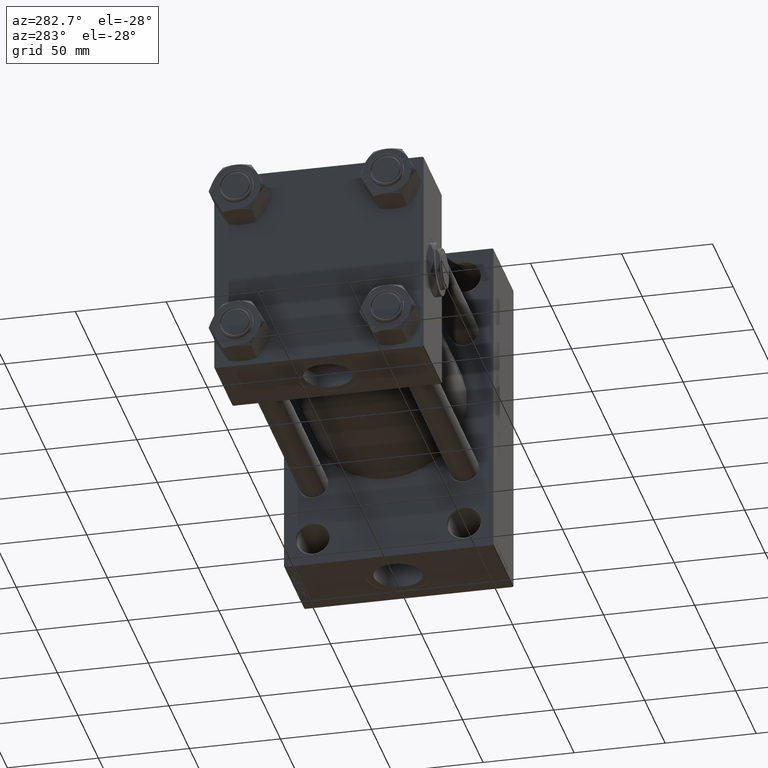
[diagram: clean part render]
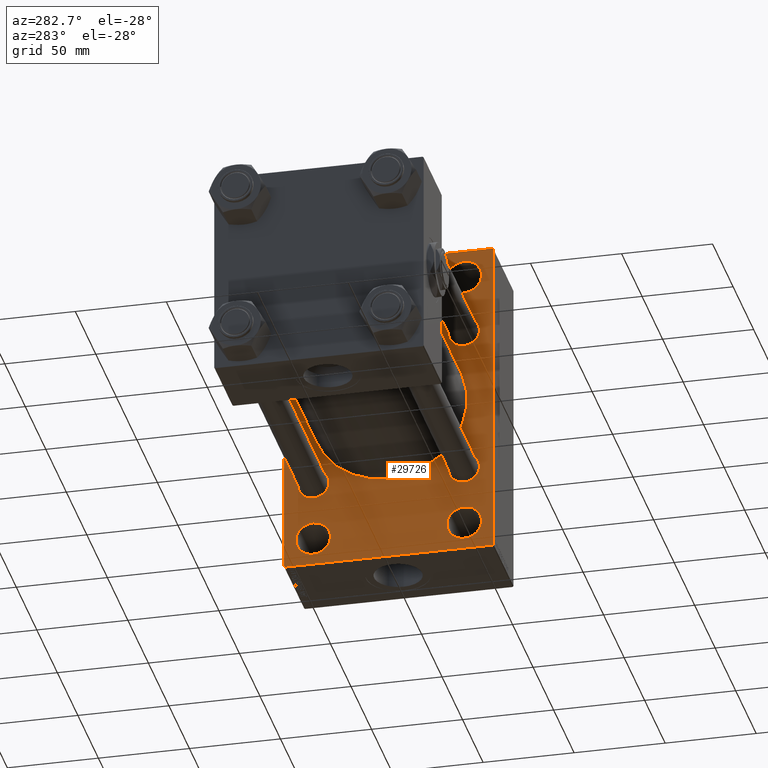
[diagram: same view with one face highlighted and labeled with its STEP entity id]
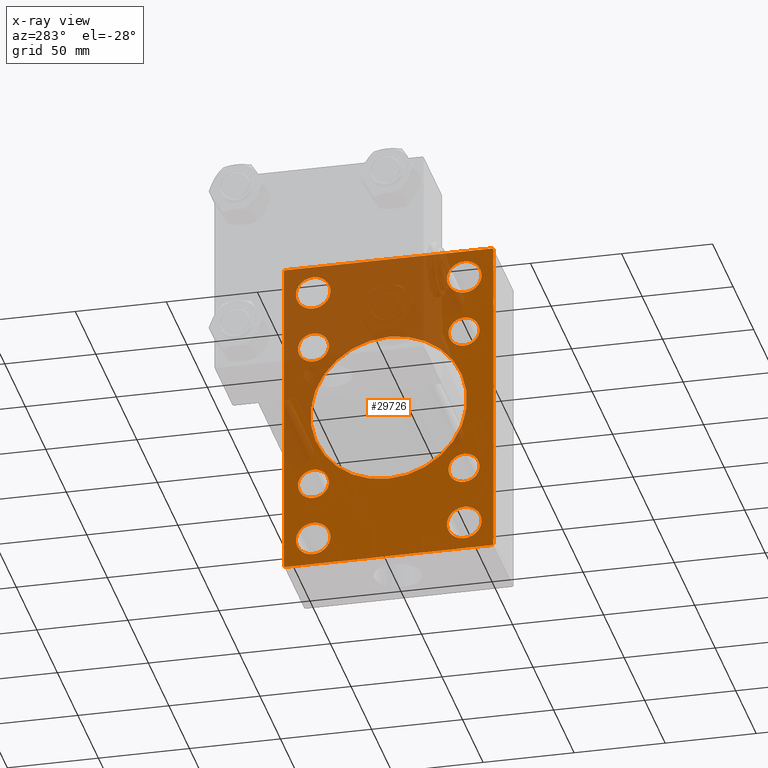
[diagram: x-ray of the same camera — body ghosted, the highlighted face saturated]
A machine part, auxiliary view. The second image highlights one B-rep face of the part: STEP entity #29726.
The next image is the same camera in x-ray: the body ghosted, the highlighted face saturated — about 42% of this face is hidden behind the body in this view.
In plain terms, the highlighted planar face has unit normal (-1, 0, 0).
Its self-contained STEP definition (entity closure, byte-faithful):
#197 = ORIENTED_EDGE ( 'NONE', *, *, #21990, .T. ) ;
#477 = CARTESIAN_POINT ( 'NONE',  ( 169.9999999999999716, 57.49999999999997868, -90.00000000000000000 ) ) ;
#631 = CARTESIAN_POINT ( 'NONE',  ( 169.9999999999999716, -41.34999999999998721, 49.85000000000002274 ) ) ;
#765 = CARTESIAN_POINT ( 'NONE',  ( 169.9999999999999716, 41.50000000000000711, 84.00000000000001421 ) ) ;
#863 = EDGE_LOOP ( 'NONE', ( #42888, #26894 ) ) ;
#1113 = EDGE_LOOP ( 'NONE', ( #14651, #21643 ) ) ;
#1150 = CARTESIAN_POINT ( 'NONE',  ( 169.9999999999999716, 57.49999999999997158, 89.99999999999998579 ) ) ;
#1376 = CARTESIAN_POINT ( 'NONE',  ( 169.9999999999999716, 41.50000000000000711, -74.50000000000000000 ) ) ;
#1391 = VERTEX_POINT ( 'NONE', #7653 ) ;
#1533 = DIRECTION ( 'NONE',  ( 0.000000000000000000, 0.000000000000000000, 1.000000000000000000 ) ) ;
#1783 = DIRECTION ( 'NONE',  ( 1.000000000000000000, -0.000000000000000000, 0.000000000000000000 ) ) ;
#1931 = EDGE_CURVE ( 'NONE', #37628, #38474, #46629, .T. ) ;
#2137 = CARTESIAN_POINT ( 'NONE',  ( 169.9999999999999716, -41.49999999999999289, 74.50000000000001421 ) ) ;
#2510 = CIRCLE ( 'NONE', #6560, 9.500000000000008882 ) ;
#2520 = DIRECTION ( 'NONE',  ( 1.000000000000000000, -0.000000000000000000, 0.000000000000000000 ) ) ;
#3141 = DIRECTION ( 'NONE',  ( 0.000000000000000000, 0.000000000000000000, -1.000000000000000000 ) ) ;
#3220 = EDGE_CURVE ( 'NONE', #42618, #33564, #36059, .T. ) ;
#3230 = ORIENTED_EDGE ( 'NONE', *, *, #15530, .T. ) ;
#3752 = EDGE_CURVE ( 'NONE', #6271, #18611, #23199, .T. ) ;
#3761 = DIRECTION ( 'NONE',  ( 0.000000000000000000, -1.000000000000000000, -1.206764157201257045E-16 ) ) ;
#3867 = DIRECTION ( 'NONE',  ( 0.000000000000000000, 0.000000000000000000, 1.000000000000000000 ) ) ;
#3913 = CARTESIAN_POINT ( 'NONE',  ( 169.9999999999999716, -56.99999999999999289, -90.00000000000001421 ) ) ;
#4122 = CARTESIAN_POINT ( 'NONE',  ( 169.9999999999999716, -41.34999999999998721, -41.35000000000000853 ) ) ;
#4479 = LINE ( 'NONE', #31713, #16908 ) ;
#4818 = VECTOR ( 'NONE', #3141, 1000.000000000000000 ) ;
#4912 = ORIENTED_EDGE ( 'NONE', *, *, #1931, .T. ) ;
#5009 = CIRCLE ( 'NONE', #15442, 9.500000000000008882 ) ;
#6072 = DIRECTION ( 'NONE',  ( 0.000000000000000000, 0.000000000000000000, 1.000000000000000000 ) ) ;
#6263 = AXIS2_PLACEMENT_3D ( 'NONE', #32674, #17552, #21342 ) ;
#6271 = VERTEX_POINT ( 'NONE', #20566 ) ;
#6560 = AXIS2_PLACEMENT_3D ( 'NONE', #25989, #2520, #32803 ) ;
#6917 = EDGE_LOOP ( 'NONE', ( #41310, #25622 ) ) ;
#7077 = VERTEX_POINT ( 'NONE', #31463 ) ;
#7085 = EDGE_CURVE ( 'NONE', #42779, #26435, #4479, .T. ) ;
#7158 = CIRCLE ( 'NONE', #31318, 8.500000000000007105 ) ;
#7302 = CARTESIAN_POINT ( 'NONE',  ( 169.9999999999999716, 41.50000000000000711, -64.99999999999998579 ) ) ;
#7653 = CARTESIAN_POINT ( 'NONE',  ( 169.9999999999999716, 41.50000000000000711, 65.00000000000000000 ) ) ;
#7693 = VERTEX_POINT ( 'NONE', #19959 ) ;
#8947 = CIRCLE ( 'NONE', #32303, 43.00000000000000000 ) ;
#8984 = CARTESIAN_POINT ( 'NONE',  ( 169.9999999999999716, -2.602085213965210642E-15, 0.000000000000000000 ) ) ;
#9216 = AXIS2_PLACEMENT_3D ( 'NONE', #37086, #1783, #6072 ) ;
#9500 = ORIENTED_EDGE ( 'NONE', *, *, #26423, .T. ) ;
#9796 = EDGE_LOOP ( 'NONE', ( #28385, #197, #43595, #26366, #22443, #40369, #9500, #25698 ) ) ;
#10402 = CARTESIAN_POINT ( 'NONE',  ( 169.9999999999999716, 41.34999999999999432, -32.84999999999999432 ) ) ;
#10505 = ORIENTED_EDGE ( 'NONE', *, *, #16165, .T. ) ;
#10595 = VECTOR ( 'NONE', #25116, 1000.000000000000000 ) ;
#10971 = LINE ( 'NONE', #34415, #4818 ) ;
#11124 = AXIS2_PLACEMENT_3D ( 'NONE', #4122, #14064, #3867 ) ;
#11984 = AXIS2_PLACEMENT_3D ( 'NONE', #49439, #26445, #42111 ) ;
#12370 = CARTESIAN_POINT ( 'NONE',  ( 169.9999999999999716, 57.49999999999997158, 89.99999999999998579 ) ) ;
#12706 = CARTESIAN_POINT ( 'NONE',  ( 169.9999999999999716, -41.49999999999999289, 65.00000000000000000 ) ) ;
#13350 = PLANE ( 'NONE',  #43080 ) ;
#13762 = DIRECTION ( 'NONE',  ( 0.000000000000000000, 0.000000000000000000, 1.000000000000000000 ) ) ;
#13786 = ORIENTED_EDGE ( 'NONE', *, *, #44322, .T. ) ;
#13877 = CIRCLE ( 'NONE', #25922, 8.500000000000007105 ) ;
#14064 = DIRECTION ( 'NONE',  ( 1.000000000000000000, -0.000000000000000000, 0.000000000000000000 ) ) ;
#14087 = VERTEX_POINT ( 'NONE', #38734 ) ;
#14311 = AXIS2_PLACEMENT_3D ( 'NONE', #2137, #32917, #13762 ) ;
#14377 = CIRCLE ( 'NONE', #11124, 8.500000000000007105 ) ;
#14651 = ORIENTED_EDGE ( 'NONE', *, *, #17805, .T. ) ;
#14915 = VERTEX_POINT ( 'NONE', #29973 ) ;
#15030 = DIRECTION ( 'NONE',  ( 1.000000000000000000, -0.000000000000000000, 0.000000000000000000 ) ) ;
#15124 = CIRCLE ( 'NONE', #6263, 8.500000000000007105 ) ;
#15442 = AXIS2_PLACEMENT_3D ( 'NONE', #38754, #30421, #18591 ) ;
#15530 = EDGE_CURVE ( 'NONE', #42607, #41194, #19496, .T. ) ;
#15930 = AXIS2_PLACEMENT_3D ( 'NONE', #17413, #28998, #48443 ) ;
#15968 = EDGE_CURVE ( 'NONE', #27392, #48165, #13877, .T. ) ;
#16105 = EDGE_LOOP ( 'NONE', ( #39333, #10505 ) ) ;
#16165 = EDGE_CURVE ( 'NONE', #33564, #42618, #5009, .T. ) ;
#16310 = DIRECTION ( 'NONE',  ( 1.000000000000000000, 0.000000000000000000, 0.000000000000000000 ) ) ;
#16908 = VECTOR ( 'NONE', #42850, 1000.000000000000000 ) ;
#17114 = CARTESIAN_POINT ( 'NONE',  ( 169.9999999999999716, -41.34999999999998721, 41.35000000000000853 ) ) ;
#17361 = EDGE_LOOP ( 'NONE', ( #27474, #38590 ) ) ;
#17362 = DIRECTION ( 'NONE',  ( 0.000000000000000000, 0.000000000000000000, 1.000000000000000000 ) ) ;
#17413 = CARTESIAN_POINT ( 'NONE',  ( 169.9999999999999716, 41.34999999999999432, -41.35000000000000142 ) ) ;
#17552 = DIRECTION ( 'NONE',  ( 1.000000000000000000, -0.000000000000000000, 0.000000000000000000 ) ) ;
#17805 = EDGE_CURVE ( 'NONE', #43447, #29110, #33355, .T. ) ;
#17847 = VECTOR ( 'NONE', #20579, 999.9999999999998863 ) ;
#17849 = DIRECTION ( 'NONE',  ( 0.000000000000000000, 0.000000000000000000, 1.000000000000000000 ) ) ;
#17902 = DIRECTION ( 'NONE',  ( 1.000000000000000000, -0.000000000000000000, 0.000000000000000000 ) ) ;
#18292 = EDGE_CURVE ( 'NONE', #7693, #33795, #10971, .T. ) ;
#18297 = LINE ( 'NONE', #29876, #10595 ) ;
#18591 = DIRECTION ( 'NONE',  ( 0.000000000000000000, 0.000000000000000000, 1.000000000000000000 ) ) ;
#18601 = CARTESIAN_POINT ( 'NONE',  ( 169.9999999999999716, -41.49999999999999289, 84.00000000000001421 ) ) ;
#18611 = VERTEX_POINT ( 'NONE', #3913 ) ;
#18767 = CARTESIAN_POINT ( 'NONE',  ( 169.9999999999999716, 41.34999999999999432, -49.85000000000001563 ) ) ;
#19445 = ORIENTED_EDGE ( 'NONE', *, *, #42463, .T. ) ;
#19496 = CIRCLE ( 'NONE', #47703, 43.00000000000000000 ) ;
#19606 = DIRECTION ( 'NONE',  ( 0.000000000000000000, 3.854941057726238467E-17, -1.000000000000000000 ) ) ;
#19678 = VERTEX_POINT ( 'NONE', #18767 ) ;
#19959 = CARTESIAN_POINT ( 'NONE',  ( 169.9999999999999716, -57.50000000000002132, 89.50000000000000000 ) ) ;
#20018 = VECTOR ( 'NONE', #3761, 1000.000000000000000 ) ;
#20355 = AXIS2_PLACEMENT_3D ( 'NONE', #24360, #28124, #39758 ) ;
#20566 = CARTESIAN_POINT ( 'NONE',  ( 169.9999999999999716, 56.99999999999992895, -90.00000000000000000 ) ) ;
#20579 = DIRECTION ( 'NONE',  ( 0.000000000000000000, -0.7071067811865771047, 0.7071067811865180408 ) ) ;
#20682 = CARTESIAN_POINT ( 'NONE',  ( 169.9999999999999716, 41.50000000000000711, -84.00000000000000000 ) ) ;
#20719 = EDGE_CURVE ( 'NONE', #38474, #37628, #30798, .T. ) ;
#20819 = DIRECTION ( 'NONE',  ( 1.000000000000000000, -0.000000000000000000, 0.000000000000000000 ) ) ;
#21155 = DIRECTION ( 'NONE',  ( 1.000000000000000000, -0.000000000000000000, 0.000000000000000000 ) ) ;
#21342 = DIRECTION ( 'NONE',  ( 0.000000000000000000, 0.000000000000000000, 1.000000000000000000 ) ) ;
#21413 = FACE_BOUND ( 'NONE', #36273, .T. ) ;
#21643 = ORIENTED_EDGE ( 'NONE', *, *, #22022, .T. ) ;
#21652 = FACE_BOUND ( 'NONE', #34427, .T. ) ;
#21877 = CARTESIAN_POINT ( 'NONE',  ( 169.9999999999999716, -41.34999999999998721, -41.35000000000000853 ) ) ;
#21910 = CIRCLE ( 'NONE', #41261, 8.500000000000007105 ) ;
#21990 = EDGE_CURVE ( 'NONE', #18611, #33795, #43790, .T. ) ;
#22022 = EDGE_CURVE ( 'NONE', #29110, #43447, #46853, .T. ) ;
#22443 = ORIENTED_EDGE ( 'NONE', *, *, #49913, .F. ) ;
#22511 = CIRCLE ( 'NONE', #34565, 8.500000000000007105 ) ;
#23199 = LINE ( 'NONE', #477, #20018 ) ;
#23447 = LINE ( 'NONE', #26967, #29586 ) ;
#24360 = CARTESIAN_POINT ( 'NONE',  ( 169.9999999999999716, -41.49999999999999289, -74.49999999999998579 ) ) ;
#24456 = DIRECTION ( 'NONE',  ( 0.000000000000000000, -1.000000000000000000, -1.206764157201257291E-16 ) ) ;
#24685 = VERTEX_POINT ( 'NONE', #631 ) ;
#24725 = DIRECTION ( 'NONE',  ( 0.000000000000000000, 0.000000000000000000, 1.000000000000000000 ) ) ;
#24892 = VERTEX_POINT ( 'NONE', #765 ) ;
#24914 = EDGE_CURVE ( 'NONE', #36268, #41547, #21910, .T. ) ;
#25074 = AXIS2_PLACEMENT_3D ( 'NONE', #1376, #20819, #40233 ) ;
#25116 = DIRECTION ( 'NONE',  ( -0.000000000000000000, 0.7071067811865524577, 0.7071067811865426878 ) ) ;
#25231 = VECTOR ( 'NONE', #19606, 1000.000000000000000 ) ;
#25235 = CARTESIAN_POINT ( 'NONE',  ( 169.9999999999999716, 57.49999999999997158, 89.50000000000001421 ) ) ;
#25431 = FACE_BOUND ( 'NONE', #1113, .T. ) ;
#25622 = ORIENTED_EDGE ( 'NONE', *, *, #41772, .T. ) ;
#25675 = FACE_BOUND ( 'NONE', #6917, .T. ) ;
#25698 = ORIENTED_EDGE ( 'NONE', *, *, #39985, .T. ) ;
#25922 = AXIS2_PLACEMENT_3D ( 'NONE', #21877, #36756, #17849 ) ;
#25989 = CARTESIAN_POINT ( 'NONE',  ( 169.9999999999999716, 41.50000000000000711, 74.50000000000001421 ) ) ;
#26366 = ORIENTED_EDGE ( 'NONE', *, *, #48798, .T. ) ;
#26423 = EDGE_CURVE ( 'NONE', #26435, #14915, #43069, .T. ) ;
#26435 = VERTEX_POINT ( 'NONE', #25235 ) ;
#26445 = DIRECTION ( 'NONE',  ( 1.000000000000000000, -0.000000000000000000, 0.000000000000000000 ) ) ;
#26894 = ORIENTED_EDGE ( 'NONE', *, *, #37736, .T. ) ;
#26919 = EDGE_LOOP ( 'NONE', ( #37574, #3230 ) ) ;
#26967 = CARTESIAN_POINT ( 'NONE',  ( 169.9999999999999716, 73.49999999999916156, -73.50000000000122213 ) ) ;
#27392 = VERTEX_POINT ( 'NONE', #32853 ) ;
#27474 = ORIENTED_EDGE ( 'NONE', *, *, #46205, .T. ) ;
#28124 = DIRECTION ( 'NONE',  ( 1.000000000000000000, -0.000000000000000000, 0.000000000000000000 ) ) ;
#28385 = ORIENTED_EDGE ( 'NONE', *, *, #3752, .T. ) ;
#28989 = CIRCLE ( 'NONE', #46767, 8.500000000000007105 ) ;
#28998 = DIRECTION ( 'NONE',  ( 1.000000000000000000, -0.000000000000000000, 0.000000000000000000 ) ) ;
#29010 = CARTESIAN_POINT ( 'NONE',  ( 169.9999999999999716, -41.34999999999998721, -49.85000000000002274 ) ) ;
#29110 = VERTEX_POINT ( 'NONE', #20682 ) ;
#29452 = FACE_OUTER_BOUND ( 'NONE', #9796, .T. ) ;
#29586 = VECTOR ( 'NONE', #34041, 999.9999999999998863 ) ;
#29726 = ADVANCED_FACE ( 'NONE', ( #32993, #21652, #25431, #44372, #48659, #21413, #36779, #25675, #33244, #29452 ), #13350, .T. ) ;
#29763 = DIRECTION ( 'NONE',  ( 1.000000000000000000, -0.000000000000000000, 0.000000000000000000 ) ) ;
#29876 = CARTESIAN_POINT ( 'NONE',  ( 169.9999999999999716, -73.49999999999960210, 73.50000000000062528 ) ) ;
#29973 = CARTESIAN_POINT ( 'NONE',  ( 169.9999999999999716, 57.49999999999997868, -89.49999999999990052 ) ) ;
#30261 = DIRECTION ( 'NONE',  ( 0.000000000000000000, 0.000000000000000000, 1.000000000000000000 ) ) ;
#30421 = DIRECTION ( 'NONE',  ( 1.000000000000000000, -0.000000000000000000, 0.000000000000000000 ) ) ;
#30798 = CIRCLE ( 'NONE', #20355, 9.500000000000008882 ) ;
#31318 = AXIS2_PLACEMENT_3D ( 'NONE', #17114, #21155, #17362 ) ;
#31431 = DIRECTION ( 'NONE',  ( 0.000000000000000000, 0.000000000000000000, -1.000000000000000000 ) ) ;
#31454 = ORIENTED_EDGE ( 'NONE', *, *, #40323, .T. ) ;
#31463 = CARTESIAN_POINT ( 'NONE',  ( 169.9999999999999716, -57.00000000000004263, 89.99999999999997158 ) ) ;
#31654 = CARTESIAN_POINT ( 'NONE',  ( 169.9999999999999716, -73.49999999999762679, -73.50000000000375167 ) ) ;
#31713 = CARTESIAN_POINT ( 'NONE',  ( 169.9999999999999716, 73.49999999999837996, 73.50000000000247269 ) ) ;
#31741 = EDGE_LOOP ( 'NONE', ( #13786, #19445 ) ) ;
#32012 = CIRCLE ( 'NONE', #15930, 8.500000000000007105 ) ;
#32303 = AXIS2_PLACEMENT_3D ( 'NONE', #8984, #16310, #31431 ) ;
#32674 = CARTESIAN_POINT ( 'NONE',  ( 169.9999999999999716, 41.34999999999999432, 41.35000000000000142 ) ) ;
#32744 = DIRECTION ( 'NONE',  ( -1.000000000000000000, 0.000000000000000000, -0.000000000000000000 ) ) ;
#32803 = DIRECTION ( 'NONE',  ( 0.000000000000000000, 0.000000000000000000, 1.000000000000000000 ) ) ;
#32853 = CARTESIAN_POINT ( 'NONE',  ( 169.9999999999999716, -41.34999999999998721, -32.85000000000000142 ) ) ;
#32917 = DIRECTION ( 'NONE',  ( 1.000000000000000000, -0.000000000000000000, 0.000000000000000000 ) ) ;
#32921 = CARTESIAN_POINT ( 'NONE',  ( 169.9999999999999716, 56.99999999999997158, 89.99999999999998579 ) ) ;
#32993 = FACE_BOUND ( 'NONE', #16105, .T. ) ;
#33244 = FACE_BOUND ( 'NONE', #26919, .T. ) ;
#33355 = CIRCLE ( 'NONE', #9216, 9.500000000000008882 ) ;
#33564 = VERTEX_POINT ( 'NONE', #12706 ) ;
#33795 = VERTEX_POINT ( 'NONE', #34098 ) ;
#34041 = DIRECTION ( 'NONE',  ( -0.000000000000000000, -0.7071067811865574537, -0.7071067811865376918 ) ) ;
#34098 = CARTESIAN_POINT ( 'NONE',  ( 169.9999999999999716, -57.50000000000002132, -89.49999999999997158 ) ) ;
#34298 = CARTESIAN_POINT ( 'NONE',  ( 169.9999999999999716, -41.34999999999998721, 41.35000000000000853 ) ) ;
#34415 = CARTESIAN_POINT ( 'NONE',  ( 169.9999999999999716, -57.50000000000002132, 89.99999999999997158 ) ) ;
#34427 = EDGE_LOOP ( 'NONE', ( #4912, #49450 ) ) ;
#34565 = AXIS2_PLACEMENT_3D ( 'NONE', #34298, #29763, #30261 ) ;
#35591 = VECTOR ( 'NONE', #24456, 1000.000000000000000 ) ;
#35806 = LINE ( 'NONE', #12370, #35591 ) ;
#35820 = ORIENTED_EDGE ( 'NONE', *, *, #24914, .T. ) ;
#36059 = CIRCLE ( 'NONE', #14311, 9.500000000000008882 ) ;
#36268 = VERTEX_POINT ( 'NONE', #40595 ) ;
#36273 = EDGE_LOOP ( 'NONE', ( #35820, #31454 ) ) ;
#36756 = DIRECTION ( 'NONE',  ( 1.000000000000000000, -0.000000000000000000, 0.000000000000000000 ) ) ;
#36779 = FACE_BOUND ( 'NONE', #17361, .T. ) ;
#37030 = DIRECTION ( 'NONE',  ( -0.000000000000000000, 0.000000000000000000, 1.000000000000000000 ) ) ;
#37086 = CARTESIAN_POINT ( 'NONE',  ( 169.9999999999999716, 41.50000000000000711, -74.50000000000000000 ) ) ;
#37243 = DIRECTION ( 'NONE',  ( 0.000000000000000000, 0.000000000000000000, 1.000000000000000000 ) ) ;
#37275 = CARTESIAN_POINT ( 'NONE',  ( 169.9999999999999716, 2.663896022368408223E-15, -43.00000000000000000 ) ) ;
#37574 = ORIENTED_EDGE ( 'NONE', *, *, #47766, .T. ) ;
#37628 = VERTEX_POINT ( 'NONE', #44583 ) ;
#37736 = EDGE_CURVE ( 'NONE', #1391, #24892, #48882, .T. ) ;
#38376 = DIRECTION ( 'NONE',  ( 1.000000000000000000, 0.000000000000000000, 0.000000000000000000 ) ) ;
#38474 = VERTEX_POINT ( 'NONE', #48804 ) ;
#38590 = ORIENTED_EDGE ( 'NONE', *, *, #39256, .T. ) ;
#38734 = CARTESIAN_POINT ( 'NONE',  ( 169.9999999999999716, -41.34999999999998721, 32.85000000000000142 ) ) ;
#38754 = CARTESIAN_POINT ( 'NONE',  ( 169.9999999999999716, -41.49999999999999289, 74.50000000000001421 ) ) ;
#38886 = CARTESIAN_POINT ( 'NONE',  ( 169.9999999999999716, -2.602085213965210642E-15, 0.000000000000000000 ) ) ;
#39256 = EDGE_CURVE ( 'NONE', #19678, #41913, #32012, .T. ) ;
#39333 = ORIENTED_EDGE ( 'NONE', *, *, #3220, .T. ) ;
#39758 = DIRECTION ( 'NONE',  ( 0.000000000000000000, 0.000000000000000000, 1.000000000000000000 ) ) ;
#39985 = EDGE_CURVE ( 'NONE', #14915, #6271, #23447, .T. ) ;
#40233 = DIRECTION ( 'NONE',  ( 0.000000000000000000, 0.000000000000000000, 1.000000000000000000 ) ) ;
#40323 = EDGE_CURVE ( 'NONE', #41547, #36268, #15124, .T. ) ;
#40369 = ORIENTED_EDGE ( 'NONE', *, *, #7085, .T. ) ;
#40595 = CARTESIAN_POINT ( 'NONE',  ( 169.9999999999999716, 41.34999999999999432, 49.85000000000001563 ) ) ;
#40831 = CARTESIAN_POINT ( 'NONE',  ( 169.9999999999999716, 0.000000000000000000, 0.000000000000000000 ) ) ;
#41109 = CARTESIAN_POINT ( 'NONE',  ( 169.9999999999999716, 41.34999999999999432, 41.35000000000000142 ) ) ;
#41194 = VERTEX_POINT ( 'NONE', #46212 ) ;
#41261 = AXIS2_PLACEMENT_3D ( 'NONE', #41109, #17902, #24725 ) ;
#41310 = ORIENTED_EDGE ( 'NONE', *, *, #15968, .T. ) ;
#41538 = CARTESIAN_POINT ( 'NONE',  ( 169.9999999999999716, 41.50000000000000711, 74.50000000000001421 ) ) ;
#41547 = VERTEX_POINT ( 'NONE', #47151 ) ;
#41772 = EDGE_CURVE ( 'NONE', #48165, #27392, #14377, .T. ) ;
#41913 = VERTEX_POINT ( 'NONE', #10402 ) ;
#42111 = DIRECTION ( 'NONE',  ( 0.000000000000000000, 0.000000000000000000, 1.000000000000000000 ) ) ;
#42463 = EDGE_CURVE ( 'NONE', #14087, #24685, #7158, .T. ) ;
#42607 = VERTEX_POINT ( 'NONE', #37275 ) ;
#42618 = VERTEX_POINT ( 'NONE', #18601 ) ;
#42779 = VERTEX_POINT ( 'NONE', #32921 ) ;
#42850 = DIRECTION ( 'NONE',  ( 0.000000000000000000, 0.7071067811865671127, -0.7071067811865279218 ) ) ;
#42888 = ORIENTED_EDGE ( 'NONE', *, *, #49741, .T. ) ;
#43069 = LINE ( 'NONE', #1150, #25231 ) ;
#43080 = AXIS2_PLACEMENT_3D ( 'NONE', #40831, #32744, #37030 ) ;
#43447 = VERTEX_POINT ( 'NONE', #7302 ) ;
#43595 = ORIENTED_EDGE ( 'NONE', *, *, #18292, .F. ) ;
#43693 = CARTESIAN_POINT ( 'NONE',  ( 169.9999999999999716, 41.34999999999999432, -41.35000000000000142 ) ) ;
#43790 = LINE ( 'NONE', #31654, #17847 ) ;
#44322 = EDGE_CURVE ( 'NONE', #24685, #14087, #22511, .T. ) ;
#44372 = FACE_BOUND ( 'NONE', #863, .T. ) ;
#44583 = CARTESIAN_POINT ( 'NONE',  ( 169.9999999999999716, -41.49999999999999289, -64.99999999999997158 ) ) ;
#45701 = DIRECTION ( 'NONE',  ( 0.000000000000000000, 0.000000000000000000, -1.000000000000000000 ) ) ;
#46205 = EDGE_CURVE ( 'NONE', #41913, #19678, #28989, .T. ) ;
#46212 = CARTESIAN_POINT ( 'NONE',  ( 169.9999999999999716, -2.602085213965210642E-15, 43.00000000000000000 ) ) ;
#46629 = CIRCLE ( 'NONE', #11984, 9.500000000000008882 ) ;
#46767 = AXIS2_PLACEMENT_3D ( 'NONE', #43693, #48208, #1533 ) ;
#46853 = CIRCLE ( 'NONE', #25074, 9.500000000000008882 ) ;
#47151 = CARTESIAN_POINT ( 'NONE',  ( 169.9999999999999716, 41.34999999999999432, 32.84999999999999432 ) ) ;
#47703 = AXIS2_PLACEMENT_3D ( 'NONE', #38886, #38376, #45701 ) ;
#47766 = EDGE_CURVE ( 'NONE', #41194, #42607, #8947, .T. ) ;
#48055 = AXIS2_PLACEMENT_3D ( 'NONE', #41538, #15030, #37243 ) ;
#48165 = VERTEX_POINT ( 'NONE', #29010 ) ;
#48208 = DIRECTION ( 'NONE',  ( 1.000000000000000000, -0.000000000000000000, 0.000000000000000000 ) ) ;
#48443 = DIRECTION ( 'NONE',  ( 0.000000000000000000, 0.000000000000000000, 1.000000000000000000 ) ) ;
#48659 = FACE_BOUND ( 'NONE', #31741, .T. ) ;
#48798 = EDGE_CURVE ( 'NONE', #7693, #7077, #18297, .T. ) ;
#48804 = CARTESIAN_POINT ( 'NONE',  ( 169.9999999999999716, -41.49999999999999289, -83.99999999999998579 ) ) ;
#48882 = CIRCLE ( 'NONE', #48055, 9.500000000000008882 ) ;
#49439 = CARTESIAN_POINT ( 'NONE',  ( 169.9999999999999716, -41.49999999999999289, -74.49999999999998579 ) ) ;
#49450 = ORIENTED_EDGE ( 'NONE', *, *, #20719, .T. ) ;
#49741 = EDGE_CURVE ( 'NONE', #24892, #1391, #2510, .T. ) ;
#49913 = EDGE_CURVE ( 'NONE', #42779, #7077, #35806, .T. ) ;